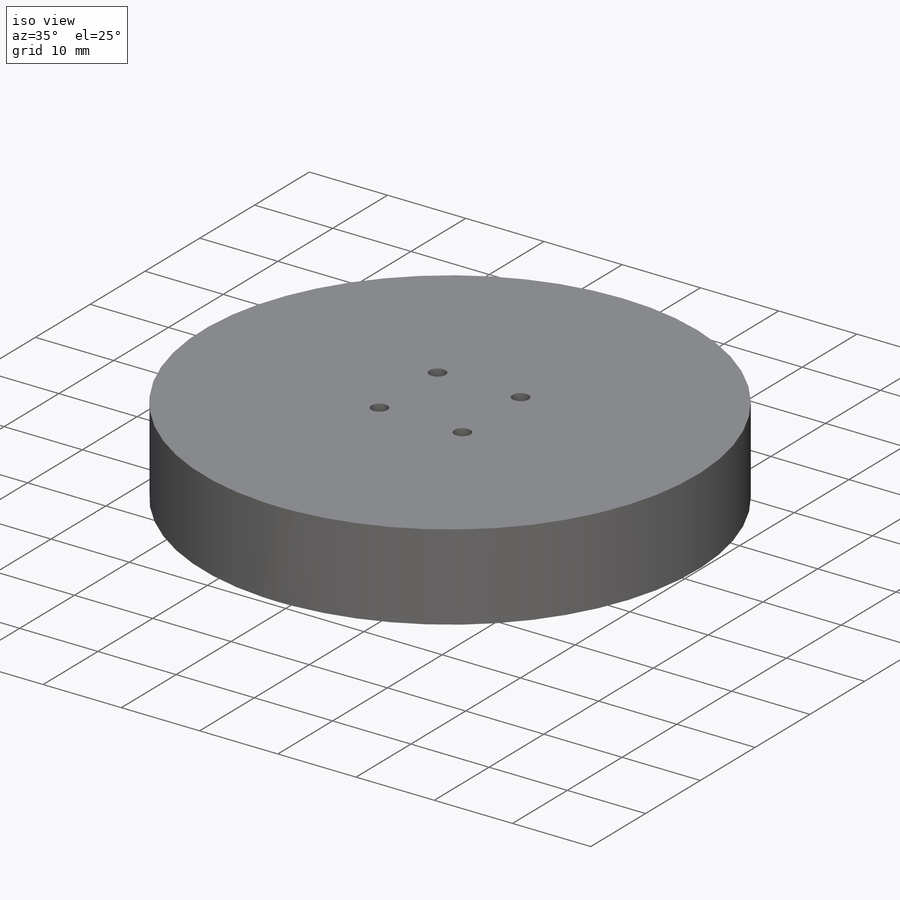
[diagram: iso view]
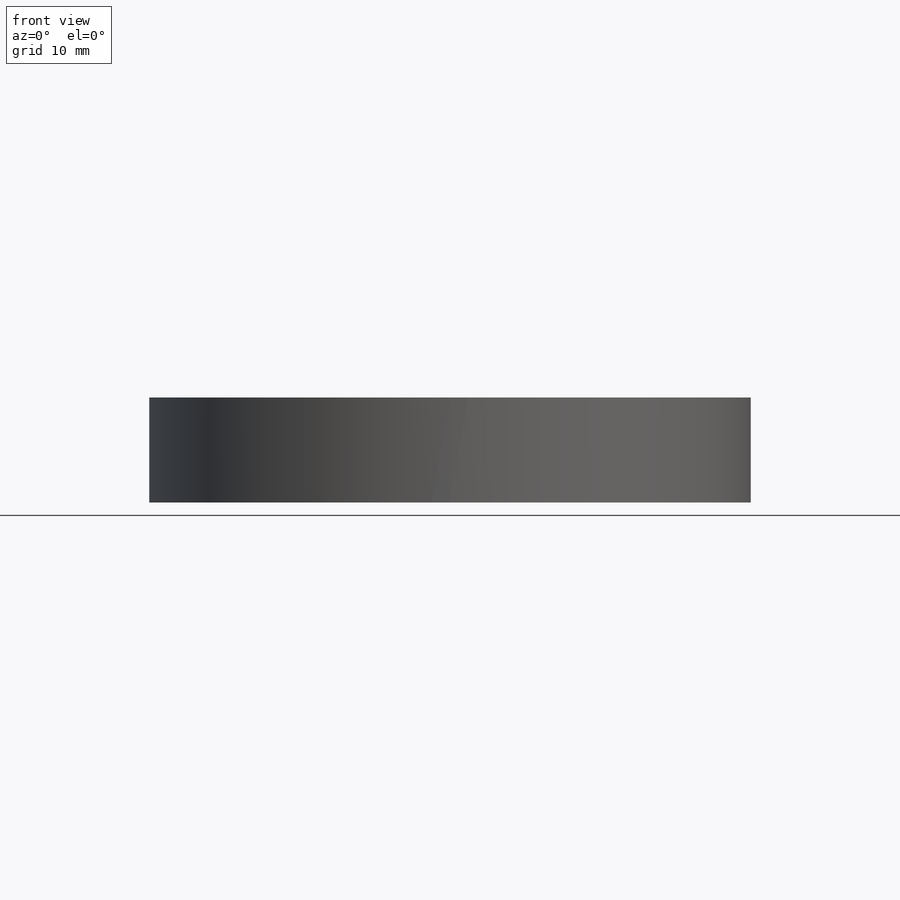
[diagram: front view]
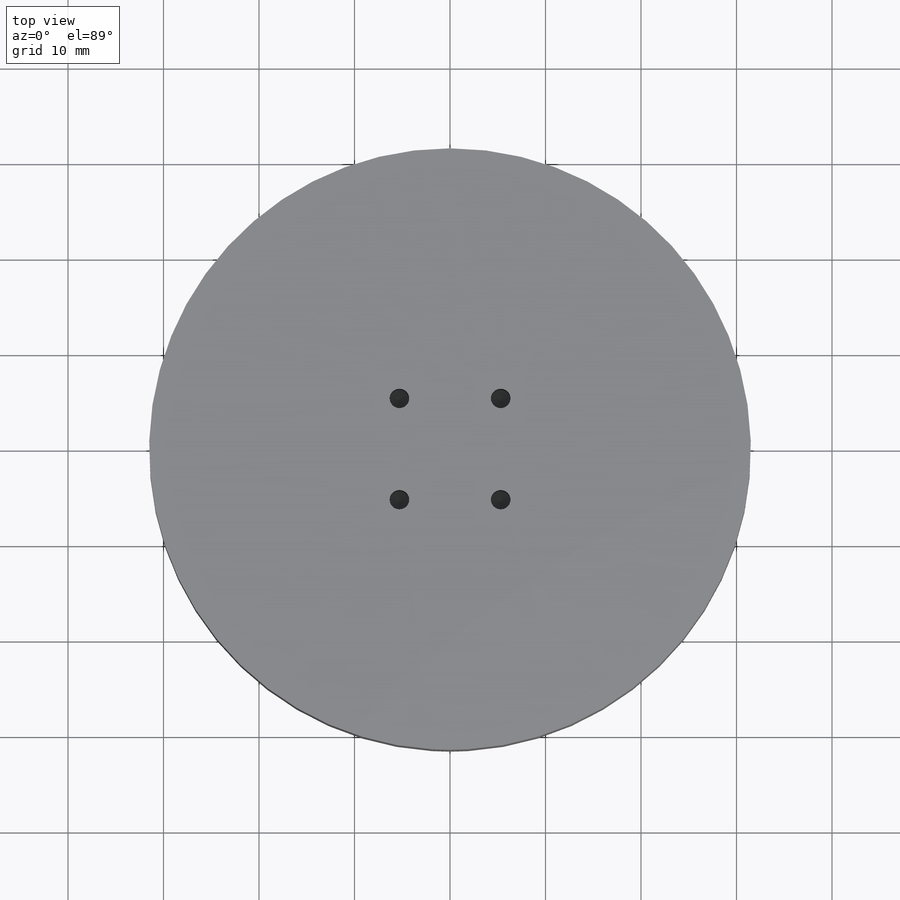
[diagram: top view]
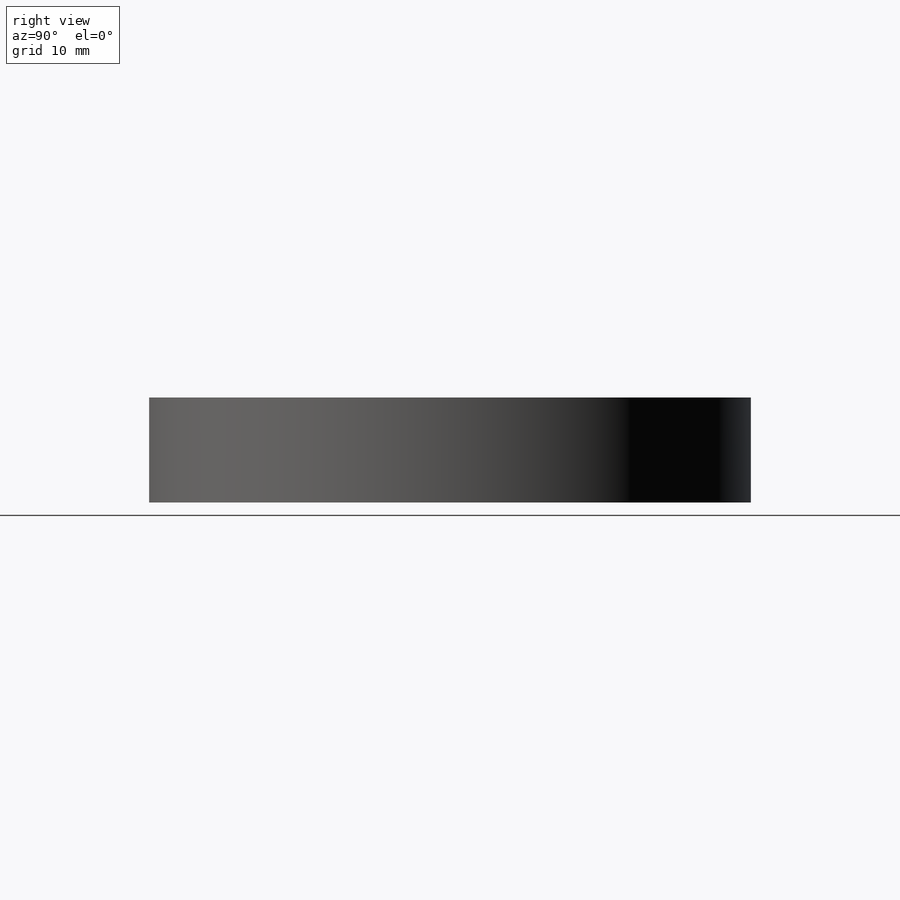
[diagram: right view]
SOLIDWORKS PART (.sldprt)
format: sldprt  version: not decoded by parser v0  size: 150,016 bytes
history: native  units: mm
features: sketch x4, material x1, extrude x1, hole x1, cut_extrude x1 (+13 scaffold rows collapsed)
feature tree (21):
  scaffold x13  (default folders/planes/origin — collapsed)
  material  "Material <not specified>"
  sketch  "Sketch1"  dims[D1=33.5mm]
  extrude  "Boss-Extrude1"  Depth=21mm
  hole  "Tap Drill for M2.5x0.45 Tap2"  Diameter=2.05mm Depth=7mm
  sketch  "Sketch5"  dims[c1.D1=7.5mm c2.D1=135.0deg c3.D1=7.5mm c4.D1=135.0deg c5.D1=7.5mm c6.D1=45.0deg c7.D1=7.5mm c8.D1=335.0deg c9.D1=7.5mm]
  sketch  "Sketch4"  dims[hole-wizard template sketch: 47 standard entries collapsed; hole parameters kept: c15.Hole Depth=7.0mm c15.D3=~14.816244mm c15.Drill Angle=118.0deg]
  sketch  "Sketch6"  dims[D1=25.0mm]
  cut_extrude  "Cut-Extrude1"  Depth=10mm
decode coverage: 7 of 7 modeling features carry decoded parameters
note: ~ marks probable driven/reference dimensions
note: suppression state not decoded; provenance and decode notes live in map.json
